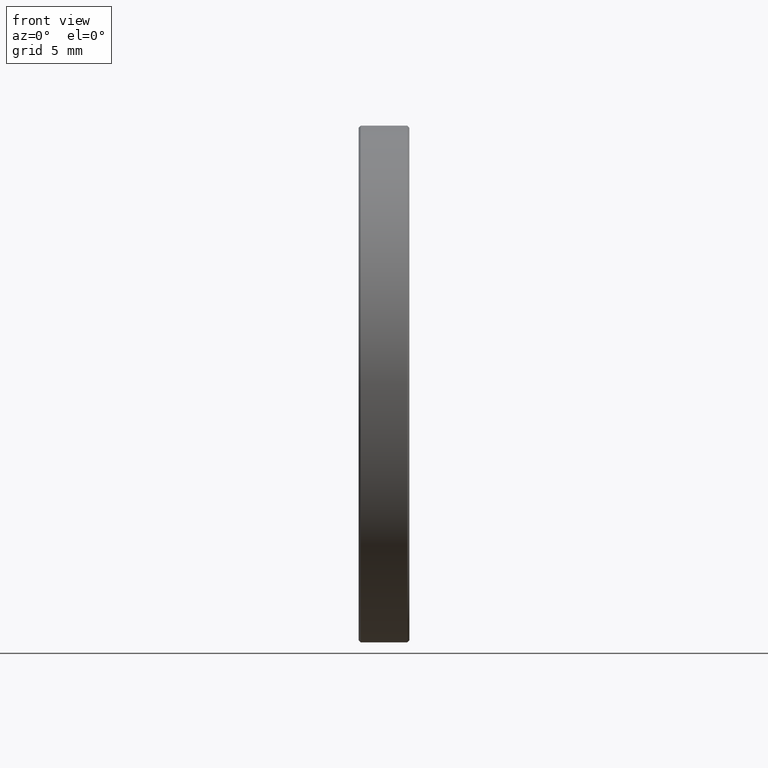
[diagram: clean part render]
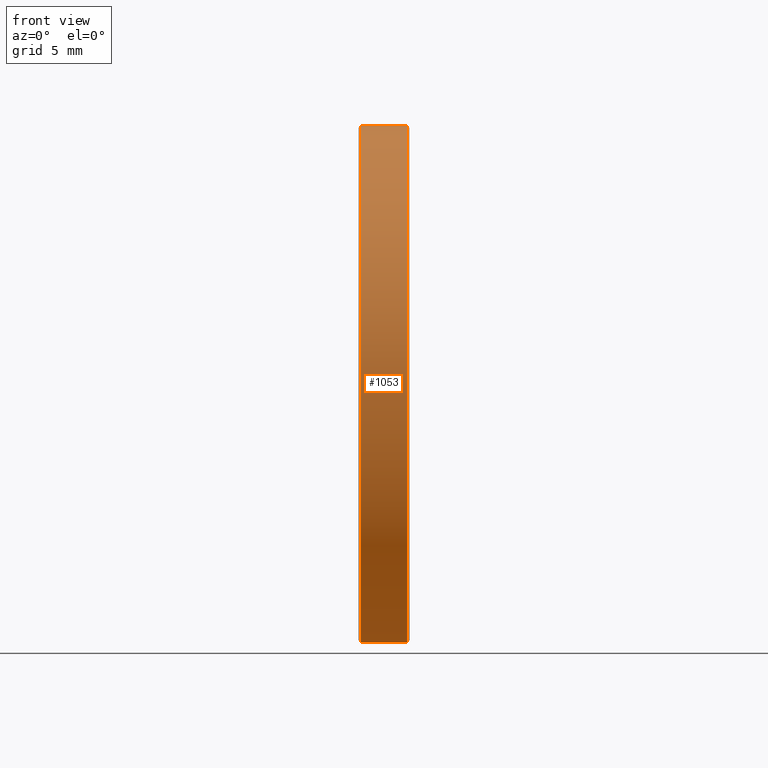
[diagram: same view with one face highlighted and labeled with its STEP entity id]
A machine part, front view. The second image highlights one B-rep face of the part: STEP entity #1053.
In plain terms, the highlighted cylindrical surface (partial cylindrical patch) has radius 12.7 mm, axis along (-1, 0, 0).
Its self-contained STEP definition (entity closure, byte-faithful):
#77 = DIRECTION ( 'NONE',  ( 0.000000000000000000, 0.000000000000000000, -1.000000000000000000 ) ) ;
#121 = DIRECTION ( 'NONE',  ( -1.000000000000000000, 0.000000000000000000, 0.000000000000000000 ) ) ;
#187 = VERTEX_POINT ( 'NONE', #1166 ) ;
#194 = ORIENTED_EDGE ( 'NONE', *, *, #461, .T. ) ;
#215 = ORIENTED_EDGE ( 'NONE', *, *, #445, .F. ) ;
#239 = LINE ( 'NONE', #671, #475 ) ;
#285 = CIRCLE ( 'NONE', #589, 12.69999999999999929 ) ;
#381 = CARTESIAN_POINT ( 'NONE',  ( -4.834863851252999112, 1.436758841085001626, 12.69999999999999929 ) ) ;
#433 = EDGE_LOOP ( 'NONE', ( #215, #1217, #194, #794 ) ) ;
#445 = EDGE_CURVE ( 'NONE', #929, #538, #784, .T. ) ;
#461 = EDGE_CURVE ( 'NONE', #652, #187, #239, .T. ) ;
#475 = VECTOR ( 'NONE', #1107, 1000.000000000000000 ) ;
#538 = VERTEX_POINT ( 'NONE', #381 ) ;
#546 = CARTESIAN_POINT ( 'NONE',  ( -2.534863851253000178, 1.436758841085001626, 12.69999999999999929 ) ) ;
#589 = AXIS2_PLACEMENT_3D ( 'NONE', #629, #1061, #77 ) ;
#629 = CARTESIAN_POINT ( 'NONE',  ( -2.534863851253000178, 1.436758841085000071, 25.39999999999999858 ) ) ;
#645 = CIRCLE ( 'NONE', #938, 12.69999999999999929 ) ;
#652 = VERTEX_POINT ( 'NONE', #1070 ) ;
#668 = DIRECTION ( 'NONE',  ( 0.000000000000000000, 0.000000000000000000, 1.000000000000000000 ) ) ;
#671 = CARTESIAN_POINT ( 'NONE',  ( -2.434863851252999645, 1.436758841085000071, 38.09999999999999432 ) ) ;
#698 = CARTESIAN_POINT ( 'NONE',  ( -2.434863851252999645, 1.436758841085001626, 12.69999999999999929 ) ) ;
#699 = EDGE_CURVE ( 'NONE', #187, #538, #645, .T. ) ;
#720 = AXIS2_PLACEMENT_3D ( 'NONE', #1188, #121, #668 ) ;
#784 = LINE ( 'NONE', #698, #1369 ) ;
#794 = ORIENTED_EDGE ( 'NONE', *, *, #699, .T. ) ;
#796 = DIRECTION ( 'NONE',  ( -1.000000000000000000, 0.000000000000000000, 0.000000000000000000 ) ) ;
#837 = DIRECTION ( 'NONE',  ( 1.000000000000000000, 0.000000000000000000, 0.000000000000000000 ) ) ;
#841 = FACE_OUTER_BOUND ( 'NONE', #433, .T. ) ;
#929 = VERTEX_POINT ( 'NONE', #546 ) ;
#938 = AXIS2_PLACEMENT_3D ( 'NONE', #950, #837, #1059 ) ;
#950 = CARTESIAN_POINT ( 'NONE',  ( -4.834863851252999112, 1.436758841085000071, 25.39999999999999858 ) ) ;
#1053 = ADVANCED_FACE ( 'NONE', ( #841 ), #1384, .T. ) ;
#1059 = DIRECTION ( 'NONE',  ( 0.000000000000000000, 0.000000000000000000, -1.000000000000000000 ) ) ;
#1061 = DIRECTION ( 'NONE',  ( -1.000000000000000000, 0.000000000000000000, 0.000000000000000000 ) ) ;
#1070 = CARTESIAN_POINT ( 'NONE',  ( -2.534863851253000178, 1.436758841085000071, 38.09999999999999432 ) ) ;
#1107 = DIRECTION ( 'NONE',  ( -1.000000000000000000, 0.000000000000000000, 0.000000000000000000 ) ) ;
#1166 = CARTESIAN_POINT ( 'NONE',  ( -4.834863851252999112, 1.436758841085000071, 38.09999999999999432 ) ) ;
#1188 = CARTESIAN_POINT ( 'NONE',  ( -2.434863851252999645, 1.436758841085000071, 25.39999999999999858 ) ) ;
#1217 = ORIENTED_EDGE ( 'NONE', *, *, #1297, .T. ) ;
#1297 = EDGE_CURVE ( 'NONE', #929, #652, #285, .T. ) ;
#1369 = VECTOR ( 'NONE', #796, 1000.000000000000000 ) ;
#1384 = CYLINDRICAL_SURFACE ( 'NONE', #720, 12.69999999999999574 ) ;